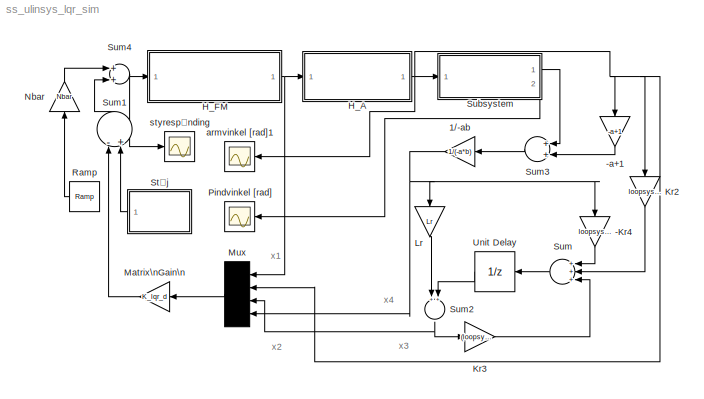
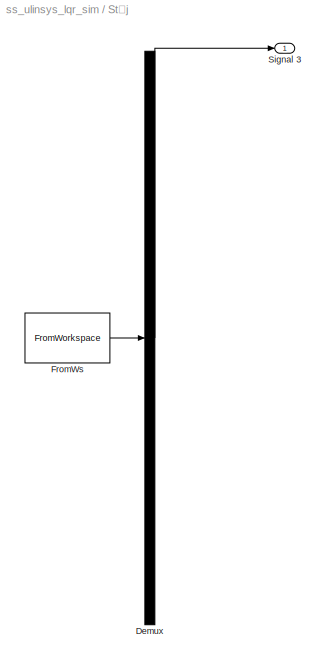
MODEL ss_ulinsys_lqr_sim
KIND model
CONFIG AbsTol = 1e-6
CONFIG FixedStep = auto
CONFIG MaxStep = auto
CONFIG MinStep = auto
CONFIG RelTol = 1e-3
CONFIG Solver = ode4
CONFIG SolverMode = Auto
CONFIG StartTime = 0.0
CONFIG StopTime = 30
BLOCK [Gain] -Kr4
  Gain = loopsysd.a(2,1)-Lr*loopsysd.a(1,1)
BLOCK [Gain] -a+1
  Gain = -a+1
BLOCK [Gain] 1//-ab
  Gain = 1/(-a*b)
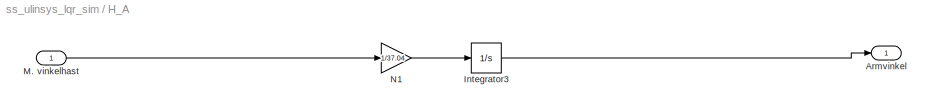
BLOCK [SubSystem] H_A
  Ports = [1, 1]
  TreatAsAtomicUnit = off
BLOCK [Outport] H_A/Armvinkel
BLOCK [Integrator] H_A/Integrator3
  Ports = [1, 1]
BLOCK [Inport] H_A/M. vinkelhast
BLOCK [Gain] H_A/N1
  Gain = 1/37.04
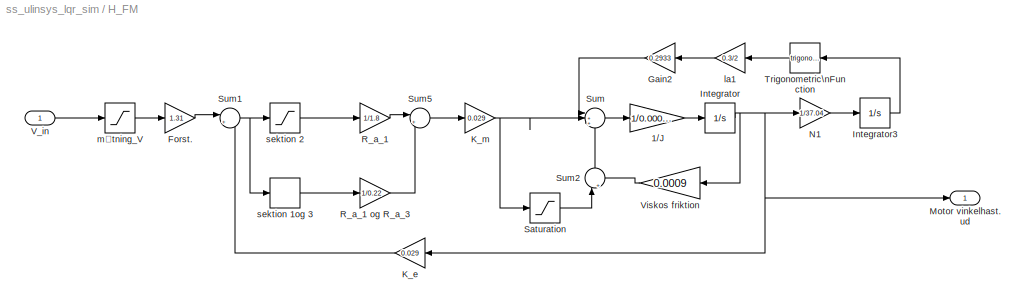
BLOCK [SubSystem] H_FM
  Ports = [1, 1]
  TreatAsAtomicUnit = off
BLOCK [Gain] H_FM/1//J
  Gain = 1/0.00066
BLOCK [Gain] H_FM/Forst.
  Gain = 1.31
BLOCK [Gain] H_FM/Gain2
  Gain = 0.2933
BLOCK [Integrator] H_FM/Integrator
  Ports = [1, 1]
BLOCK [Integrator] H_FM/Integrator3
  Ports = [1, 1]
BLOCK [Gain] H_FM/K_e
  Gain = 0.029
BLOCK [Gain] H_FM/K_m
  Gain = 0.029
BLOCK [Outport] H_FM/Motor vinkelhast. ud
BLOCK [Gain] H_FM/N1
  Gain = 1/37.04
BLOCK [Gain] H_FM/R_a_1
  Gain = 1/1.8
BLOCK [Gain] H_FM/R_a_1 og R_a_3
  Gain = 1/0.22
BLOCK [Saturate] H_FM/Saturation
  LowerLimit = -0.3712
  UpperLimit = 0.3712
BLOCK [Sum] H_FM/Sum
  IconShape = round
  InputSameDT = off
  Inputs = |++-
  OutDataTypeMode = Inherit via internal rule
  Ports = [3, 1]
BLOCK [Sum] H_FM/Sum1
  IconShape = round
  InputSameDT = off
  Inputs = |+-
  OutDataTypeMode = Inherit via internal rule
  Ports = [2, 1]
BLOCK [Sum] H_FM/Sum2
  IconShape = round
  InputSameDT = off
  Inputs = |++
  OutDataTypeMode = Inherit via internal rule
  Ports = [2, 1]
BLOCK [Sum] H_FM/Sum5
  IconShape = round
  InputSameDT = off
  Inputs = |++
  OutDataTypeMode = Inherit via internal rule
  Ports = [2, 1]
BLOCK [Trigonometry] H_FM/Trigonometric\nFunction
  Ports = [1, 1]
BLOCK [Inport] H_FM/V_in
BLOCK [Gain] H_FM/Viskos friktion
  Gain = 0.0009
BLOCK [Gain] H_FM/la1
  Gain = 0.3/2
BLOCK [Saturate] H_FM/mætning_V
  LowerLimit = -5
  UpperLimit = 5
BLOCK [DeadZone] H_FM/sektion 1og 3
  LowerValue = -1
  UpperValue = 1
BLOCK [Saturate] H_FM/sektion 2
  LowerLimit = -1
  UpperLimit = 1
BLOCK [Gain] Kr2
  Gain = loopsysd.b(2)-Lr*loopsysd.b(1)
BLOCK [Gain] Kr3
  Gain = (loopsysd.a(2,2)-Lr*loopsysd.a(1,2))
BLOCK [Gain] Lr
  Gain = Lr
BLOCK [Gain] Matrix\nGain\n
  Gain = K_lqr_d
  Multiplication = Matrix(K*u)
BLOCK [Mux] Mux
  DisplayOption = bar
  Ports = [4, 1]
BLOCK [Gain] Nbar
  Gain = Nbar
BLOCK [Scope] Pindvinkel [rad]
  DataFormat = Array
  LimitDataPoints = off
  NumInputPorts = 1
  Ports = [1]
  SaveName = pindvinkel
  SaveToWorkspace = on
BLOCK [Reference] Ramp  REF=simulink/Sources/Ramp
  Ports = [0, 1]
  SourceBlock = simulink/Sources/Ramp
  SourceType = Ramp
  VectorParams1D = on
  X0 = 0
  slope = 0.21
  start = 0
BLOCK [SubSystem] Støj
  ClipboardFcn = sigbuilder_block('clipboard');
  CloseFcn = sigbuilder_block('close');
  CopyFcn = sigbuilder_block('copy');
  DeleteFcn = sigbuilder_block('delete');
  MaskDescription = Sigbuilder GUI
  MaskDisplay = plot(0,0,100,100,[10,10,40,40,10],[80,20,20,80,80],[40,10],[50,50], [40,27,10],[65,72,56],[40,25,25,10],[28,28,43,43]);
  MaskIconFrame = on
  MaskIconOpaque = off
  MaskIconRotate = port
  MaskIconUnits = autoscale
  MaskInitialization = if ~strcmp(get_param(bdroot,'SimulationStatus'),'stopped') tuvar = sigbuilder_block('maskInit'); end
  MaskType = Sigbuilder block
  ModelCloseFcn = sigbuilder_block('modelClose');
  NameChangeFcn = sigbuilder_block('namechange');
  OpenFcn = sigbuilder_block('open',[50 50 520 400 ]);
  Ports = [0, 1]
  PreSaveFcn = sigbuilder_block('preSave');
  StartFcn = sigbuilder_block('start');
  StopFcn = sigbuilder_block('stop');
  Tag = STV Subsys
  TreatAsAtomicUnit = off
BLOCK [Demux] Støj/Demux
  Outputs = 1
  Ports = [1, 1]
  Tag = STV Demux
BLOCK [FromWorkspace] Støj/FromWs
  SampleTime = 0
  SigBuilderData = DataTag0
  Tag = STV FromWs
  VariableName = tuvar
BLOCK [Outport] Støj/Signal 3
  Tag = STV Outport
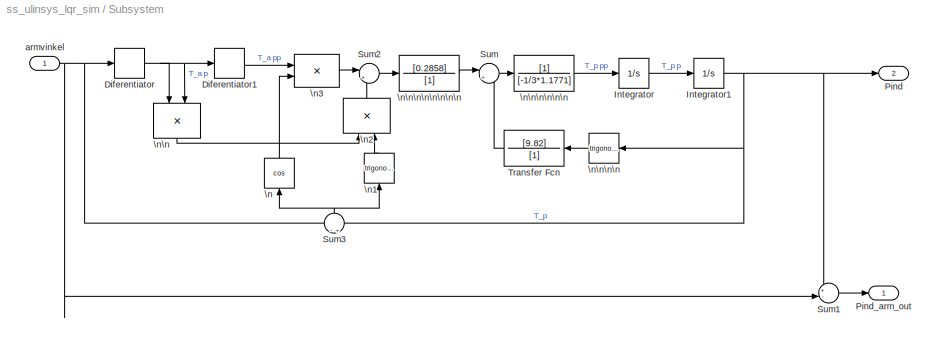
BLOCK [SubSystem] Subsystem
  Ports = [1, 2]
  TreatAsAtomicUnit = off
BLOCK [Derivative] Subsystem/Diferentiator
BLOCK [Derivative] Subsystem/Diferentiator1
BLOCK [Integrator] Subsystem/Integrator
  Ports = [1, 1]
BLOCK [Integrator] Subsystem/Integrator1
  Ports = [1, 1]
BLOCK [Outport] Subsystem/Pind
  Port = 2
BLOCK [Outport] Subsystem/Pind_arm_out
BLOCK [Sum] Subsystem/Sum
  IconShape = round
  InputSameDT = off
  Inputs = |+-
  OutDataTypeMode = Inherit via internal rule
  Ports = [2, 1]
BLOCK [Sum] Subsystem/Sum1
  IconShape = round
  InputSameDT = off
  Inputs = +-
  OutDataTypeMode = Inherit via internal rule
  Ports = [2, 1]
BLOCK [Sum] Subsystem/Sum2
  IconShape = round
  InputSameDT = off
  Inputs = |++
  OutDataTypeMode = Inherit via internal rule
  Ports = [2, 1]
BLOCK [Sum] Subsystem/Sum3
  IconShape = round
  InputSameDT = off
  Inputs = -+
  OutDataTypeMode = Inherit via internal rule
  Ports = [2, 1]
BLOCK [TransferFcn] Subsystem/Transfer Fcn
  Denominator = [1]
  Numerator = [9.82]
BLOCK [Trigonometry] Subsystem/\n
  Operator = cos
  OutputSignalType = real
  Ports = [1, 1]
BLOCK [Trigonometry] Subsystem/\n1
  OutputSignalType = real
  Ports = [1, 1]
BLOCK [Product] Subsystem/\n2
  InputSameDT = off
  Ports = [2, 1]
BLOCK [Product] Subsystem/\n3
  InputSameDT = off
  Ports = [2, 1]
BLOCK [Product] Subsystem/\n\n
  InputSameDT = off
  Ports = [2, 1]
BLOCK [Trigonometry] Subsystem/\n\n\n\n
  OutputSignalType = real
  Ports = [1, 1]
BLOCK [TransferFcn] Subsystem/\n\n\n\n\n\n
  Denominator = [-1/3*1.1771]
BLOCK [TransferFcn] Subsystem/\n\n\n\n\n\n\n\n
  Denominator = [1]
  Numerator = [0.2858]
BLOCK [Inport] Subsystem/armvinkel
BLOCK [Sum] Sum
  InputSameDT = off
  Inputs = +++
  OutDataTypeMode = Inherit via internal rule
  Ports = [3, 1]
BLOCK [Sum] Sum1
  InputSameDT = off
  Inputs = -+
  OutDataTypeMode = Inherit via internal rule
  Ports = [2, 1]
BLOCK [Sum] Sum2
  InputSameDT = off
  OutDataTypeMode = Inherit via internal rule
  Ports = [2, 1]
BLOCK [Sum] Sum3
  InputSameDT = off
  OutDataTypeMode = Inherit via internal rule
  Ports = [2, 1]
BLOCK [Sum] Sum4
  InputSameDT = off
  OutDataTypeMode = Inherit via internal rule
  Ports = [2, 1]
BLOCK [UnitDelay] Unit Delay
  SampleTime = Ts
BLOCK [Scope] armvinkel [rad]1
  DataFormat = Array
  LimitDataPoints = off
  NumInputPorts = 1
  Ports = [1]
  SaveName = armvinkel
  SaveToWorkspace = on
BLOCK [Scope] styrespænding
  DataFormat = Array
  LimitDataPoints = off
  NumInputPorts = 1
  Ports = [1]
  SaveName = styrespaending
  SaveToWorkspace = on
ANNOTATION (root): x1
ANNOTATION (root): x2
ANNOTATION (root): x3
ANNOTATION (root): x4
LINE -Kr4:1 -> Sum:1
LINE -a+1:1 -> Sum3:2
NET 1//-ab:1 -> -Kr4:1, Lr:1, Mux:4
LINE H_A/Integrator3:1 -> H_A/Armvinkel:1
LINE H_A/M. vinkelhast:1 -> H_A/N1:1
LINE H_A/N1:1 -> H_A/Integrator3:1
NET H_A:1 -> -a+1:1, Kr2:1, Mux:2, Subsystem:1, armvinkel [rad]1:1
LINE H_FM/1//J:1 -> H_FM/Integrator:1
LINE H_FM/Forst.:1 -> H_FM/Sum1:1
LINE H_FM/Gain2:1 -> H_FM/Sum:1
LINE H_FM/Integrator3:1 -> H_FM/Trigonometric\nFunction:1
NET H_FM/Integrator:1 -> H_FM/K_e:1, H_FM/Motor vinkelhast. ud:1, H_FM/N1:1, H_FM/Viskos friktion:1
LINE H_FM/K_e:1 -> H_FM/Sum1:2
NET H_FM/K_m:1 -> H_FM/Saturation:1, H_FM/Sum:2
LINE H_FM/N1:1 -> H_FM/Integrator3:1
LINE H_FM/R_a_1 og R_a_3:1 -> H_FM/Sum5:2
LINE H_FM/R_a_1:1 -> H_FM/Sum5:1
LINE H_FM/Saturation:1 -> H_FM/Sum2:1
NET H_FM/Sum1:1 -> H_FM/sektion 1og 3:1, H_FM/sektion 2:1
LINE H_FM/Sum2:1 -> H_FM/Sum:3
LINE H_FM/Sum5:1 -> H_FM/K_m:1
LINE H_FM/Sum:1 -> H_FM/1//J:1
LINE H_FM/Trigonometric\nFunction:1 -> H_FM/la1:1
LINE H_FM/V_in:1 -> H_FM/mætning_V:1
LINE H_FM/Viskos friktion:1 -> H_FM/Sum2:2
LINE H_FM/la1:1 -> H_FM/Gain2:1
LINE H_FM/mætning_V:1 -> H_FM/Forst.:1
LINE H_FM/sektion 1og 3:1 -> H_FM/R_a_1 og R_a_3:1
LINE H_FM/sektion 2:1 -> H_FM/R_a_1:1
NET H_FM:1 -> H_A:1, Mux:1
LINE Kr2:1 -> Sum:2
LINE Kr3:1 -> Sum:3
LINE Lr:1 -> Sum2:1
LINE Matrix\nGain\n:1 -> Sum1:1
LINE Mux:1 -> Matrix\nGain\n:1
LINE Nbar:1 -> Sum4:1
LINE Ramp:1 -> Nbar:1
LINE Støj/Demux:1 -> Støj/Signal 3:1
LINE Støj/FromWs:1 -> Støj/Demux:1
LINE Støj:1 -> Sum1:2
LINE Subsystem/Diferentiator1:1 -> Subsystem/\n3:1
NET Subsystem/Diferentiator:1 -> Subsystem/Diferentiator1:1, Subsystem/\n\n:1, Subsystem/\n\n:2
NET Subsystem/Integrator1:1 -> Subsystem/Pind:1, Subsystem/Sum1:1, Subsystem/Sum3:2, Subsystem/\n\n\n\n:1
LINE Subsystem/Integrator:1 -> Subsystem/Integrator1:1
LINE Subsystem/Sum1:1 -> Subsystem/Pind_arm_out:1
LINE Subsystem/Sum2:1 -> Subsystem/\n\n\n\n\n\n\n\n:1
NET Subsystem/Sum3:1 -> Subsystem/\n1:1, Subsystem/\n:1
LINE Subsystem/Sum:1 -> Subsystem/\n\n\n\n\n\n:1
LINE Subsystem/Transfer Fcn:1 -> Subsystem/Sum:2
LINE Subsystem/\n1:1 -> Subsystem/\n2:2
LINE Subsystem/\n2:1 -> Subsystem/Sum2:2
LINE Subsystem/\n3:1 -> Subsystem/Sum2:1
LINE Subsystem/\n:1 -> Subsystem/\n3:2
LINE Subsystem/\n\n:1 -> Subsystem/\n2:1
LINE Subsystem/\n\n\n\n:1 -> Subsystem/Transfer Fcn:1
LINE Subsystem/\n\n\n\n\n\n:1 -> Subsystem/Integrator:1
LINE Subsystem/\n\n\n\n\n\n\n\n:1 -> Subsystem/Sum:1
NET Subsystem/armvinkel:1 -> Subsystem/Diferentiator:1, Subsystem/Sum1:2, Subsystem/Sum3:1
LINE Subsystem:1 -> Sum3:1
LINE Subsystem:2 -> Pindvinkel [rad]:1
LINE Sum1:1 -> Sum4:2
NET Sum2:1 -> Kr3:1, Mux:3
LINE Sum3:1 -> 1//-ab:1
NET Sum4:1 -> H_FM:1, styrespænding:1
LINE Sum:1 -> Unit Delay:1
LINE Unit Delay:1 -> Sum2:2
note: NET lines group one-source signal fan-out (src -> all destinations, sorted); 1:1 wires keep LINE
